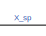
[diagram: root canvas - part 1/3, top center region]
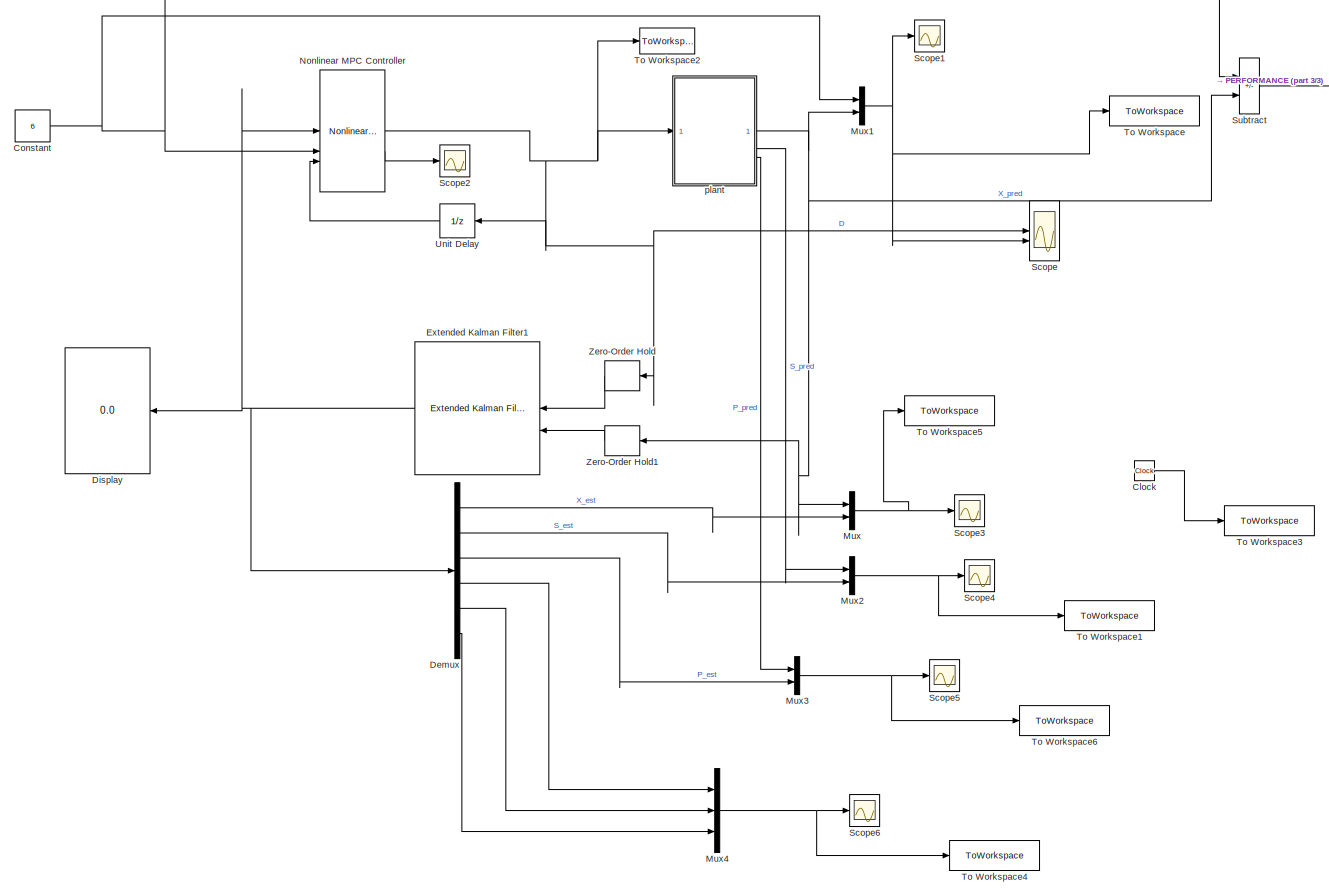
[diagram: root canvas - part 2/3, most of the canvas]
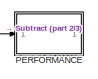
[diagram: root canvas - part 3/3, top right region]
MODEL slx_8ede43a0a8e1
KIND model
CONFIG AbsTol = auto
CONFIG EnableMultiTasking = off
CONFIG FixedStep = auto
CONFIG MaxStep = auto
CONFIG MinStep = auto
CONFIG RelTol = 1e-3
CONFIG SampleTimeConstraint = Unconstrained
CONFIG SolverName = VariableStepAuto
CONFIG StartTime = 0.0
CONFIG StopTime = 500
BLOCK [Clock] Clock
BLOCK [Constant] Constant
  Value = 6
BLOCK [Demux] Demux
  Outputs = 6
BLOCK [Display] Display
  Decimation = 1
BLOCK [Reference] Extended Kalman Filter1  REF=sharedTrackingLibrary/Extended Kalman Filter
  LibrarySourceBlock = cstblocks/State Estimation/Extended Kalman Filter
  SourceBlock = sharedTrackingLibrary/Extended Kalman Filter
  SourceType = Extended Kalman Filter
BLOCK [Mux] Mux
  DisplayOption = bar
  Inputs = 2
BLOCK [Mux] Mux1
  DisplayOption = bar
  Inputs = 2
BLOCK [Mux] Mux2
  DisplayOption = bar
  Inputs = 2
BLOCK [Mux] Mux3
  DisplayOption = bar
  Inputs = 2
BLOCK [Mux] Mux4
  DisplayOption = bar
  Inputs = 3
BLOCK [Reference] Nonlinear MPC Controller  REF=mpclib/Nonlinear MPC Controller  (lib defined in mdl_ae329e0e0455)
  SourceBlock = mpclib/Nonlinear MPC Controller
  SourceType = NonlinearMPC
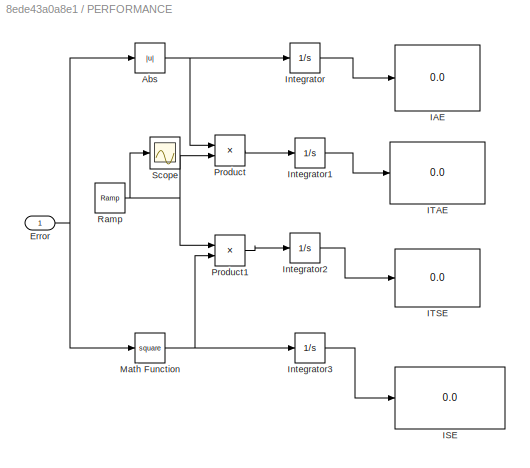
BLOCK [SubSystem] PERFORMANCE
BLOCK [Abs] PERFORMANCE/Abs
  SaturateOnIntegerOverflow = off
BLOCK [Inport] PERFORMANCE/Error
BLOCK [Display] PERFORMANCE/IAE
  Decimation = 1
BLOCK [Display] PERFORMANCE/ISE
  Decimation = 1
BLOCK [Display] PERFORMANCE/ITAE
  Decimation = 1
BLOCK [Display] PERFORMANCE/ITSE
  Decimation = 1
BLOCK [Integrator] PERFORMANCE/Integrator
BLOCK [Integrator] PERFORMANCE/Integrator1
BLOCK [Integrator] PERFORMANCE/Integrator2
BLOCK [Integrator] PERFORMANCE/Integrator3
BLOCK [Math] PERFORMANCE/Math Function
  Operator = square
  SignedPower = on
BLOCK [Product] PERFORMANCE/Product
  RndMeth = Zero
BLOCK [Product] PERFORMANCE/Product1
  RndMeth = Zero
BLOCK [Reference] PERFORMANCE/Ramp  REF=simulink/Sources/Ramp
  SourceBlock = simulink/Sources/Ramp
  SourceType = Ramp
BLOCK [Scope] PERFORMANCE/Scope
  Floating = off
  NumInputPorts = 1
  ScopeSpecificationString = Simulink.scopes.TimeScopeBlockCfg('CurrentConfiguration', extmgr.ConfigurationSet(extmgr.Configuration('Core','General UI',true),extmgr.Configuration('Core','Source UI',true),extmgr.Configuration('Sources','WiredSimulink',true,'DataLoggingLimitDataPoints',true,'DataLoggingSaveFormat','Array','DataLoggingDecimation','1','DataLoggingDecimateData',true),extmgr.Configuration('Visuals','Time Domain',tr...<+878ch>
BLOCK [Scope] Scope
  Floating = off
  NumInputPorts = 2
  ScopeSpecificationString = Simulink.scopes.TimeScopeBlockCfg('CurrentConfiguration', extmgr.ConfigurationSet(extmgr.Configuration('Core','General UI',true),extmgr.Configuration('Core','Source UI',true),extmgr.Configuration('Sources','WiredSimulink',true),extmgr.Configuration('Visuals','Time Domain',true,'SerializedDisplays',{struct('MinYLimReal','-0.02524','MaxYLimReal','0.22712','YLabelReal','','MinYLimMag','0.00000','MaxY...<+2261ch>
BLOCK [Scope] Scope1
  Floating = off
  NumInputPorts = 1
  ScopeSpecificationString = Simulink.scopes.TimeScopeBlockCfg('CurrentConfiguration', extmgr.ConfigurationSet(extmgr.Configuration('Core','General UI',true),extmgr.Configuration('Core','Source UI',true),extmgr.Configuration('Sources','WiredSimulink',true,'DataLoggingVariableName','ScopeData1'),extmgr.Configuration('Visuals','Time Domain',true,'SerializedDisplays',{struct('MinYLimReal','-0.88895','MaxYLimReal','8.00056','YLab...<+1359ch>
BLOCK [Scope] Scope2
  Floating = off
  NumInputPorts = 1
  ScopeSpecificationString = Simulink.scopes.TimeScopeBlockCfg('CurrentConfiguration', extmgr.ConfigurationSet(extmgr.Configuration('Core','General UI',true),extmgr.Configuration('Core','Source UI',true),extmgr.Configuration('Sources','WiredSimulink',true,'DataLoggingVariableName','ScopeData2'),extmgr.Configuration('Visuals','Time Domain',true,'SerializedDisplays',{struct('MinYLimReal','0.875','MaxYLimReal','2.125','YLabelRea...<+1341ch>
BLOCK [Scope] Scope3
  Floating = off
  NumInputPorts = 1
  ScopeSpecificationString = Simulink.scopes.TimeScopeBlockCfg('CurrentConfiguration', extmgr.ConfigurationSet(extmgr.Configuration('Core','General UI',true),extmgr.Configuration('Core','Source UI',true),extmgr.Configuration('Sources','WiredSimulink',true,'DataLoggingVariableName','ScopeData3'),extmgr.Configuration('Visuals','Time Domain',true,'SerializedDisplays',{struct('MinYLimReal','4.86848','MaxYLimReal','6.18369','YLabe...<+1369ch>
BLOCK [Scope] Scope4
  Floating = off
  NumInputPorts = 1
  ScopeSpecificationString = Simulink.scopes.TimeScopeBlockCfg('CurrentConfiguration', extmgr.ConfigurationSet(extmgr.Configuration('Core','General UI',true),extmgr.Configuration('Core','Source UI',true),extmgr.Configuration('Sources','WiredSimulink',true,'DataLoggingVariableName','ScopeData4'),extmgr.Configuration('Visuals','Time Domain',true,'SerializedDisplays',{struct('MinYLimReal','0.28879','MaxYLimReal','5.84231','YLabe...<+1371ch>
BLOCK [Scope] Scope5
  Floating = off
  NumInputPorts = 1
  ScopeSpecificationString = Simulink.scopes.TimeScopeBlockCfg('CurrentConfiguration', extmgr.ConfigurationSet(extmgr.Configuration('Core','General UI',true),extmgr.Configuration('Core','Source UI',true),extmgr.Configuration('Sources','WiredSimulink',true,'DataLoggingVariableName','ScopeData5'),extmgr.Configuration('Visuals','Time Domain',true,'SerializedDisplays',{struct('MinYLimReal','-13.53277','MaxYLimReal','121.79489','Y...<+1396ch>
BLOCK [Scope] Scope6
  Floating = off
  NumInputPorts = 1
  ScopeSpecificationString = Simulink.scopes.TimeScopeBlockCfg('CurrentConfiguration', extmgr.ConfigurationSet(extmgr.Configuration('Core','General UI',true),extmgr.Configuration('Core','Source UI',true),extmgr.Configuration('Sources','WiredSimulink',true,'DataLoggingVariableName','ScopeData1'),extmgr.Configuration('Visuals','Time Domain',true),extmgr.Configuration('Tools','Plot Navigation',true),extmgr.Configuration('Tools',...<+40ch>
BLOCK [Sum] Subtract
  IconShape = rectangular
  Inputs = +-
BLOCK [ToWorkspace] To Workspace
  FixptAsFi = on
  MaxDataPoints = inf
  SampleTime = Ts
  SaveFormat = Timeseries
  VariableName = X
BLOCK [ToWorkspace] To Workspace1
  FixptAsFi = on
  MaxDataPoints = inf
  SampleTime = Ts
  SaveFormat = Timeseries
  VariableName = S
BLOCK [ToWorkspace] To Workspace2
  FixptAsFi = on
  MaxDataPoints = inf
  SampleTime = Ts
  SaveFormat = Timeseries
  VariableName = D
BLOCK [ToWorkspace] To Workspace3
  FixptAsFi = on
  MaxDataPoints = inf
  SampleTime = Ts
  SaveFormat = Timeseries
  VariableName = t_save
BLOCK [ToWorkspace] To Workspace4
  FixptAsFi = on
  MaxDataPoints = inf
  SampleTime = Ts
  SaveFormat = Timeseries
  VariableName = state
BLOCK [ToWorkspace] To Workspace5
  FixptAsFi = on
  MaxDataPoints = inf
  SampleTime = Ts
  SaveFormat = Timeseries
  VariableName = x
BLOCK [ToWorkspace] To Workspace6
  FixptAsFi = on
  MaxDataPoints = inf
  SampleTime = Ts
  SaveFormat = Timeseries
  VariableName = P
BLOCK [UnitDelay] Unit Delay
  HasFrameUpgradeWarning = on
  InitialCondition = 0.202
  SampleTime = Ts
BLOCK [ZeroOrderHold] Zero-Order Hold
  SampleTime = Ts
BLOCK [ZeroOrderHold] Zero-Order Hold1
  SampleTime = Ts
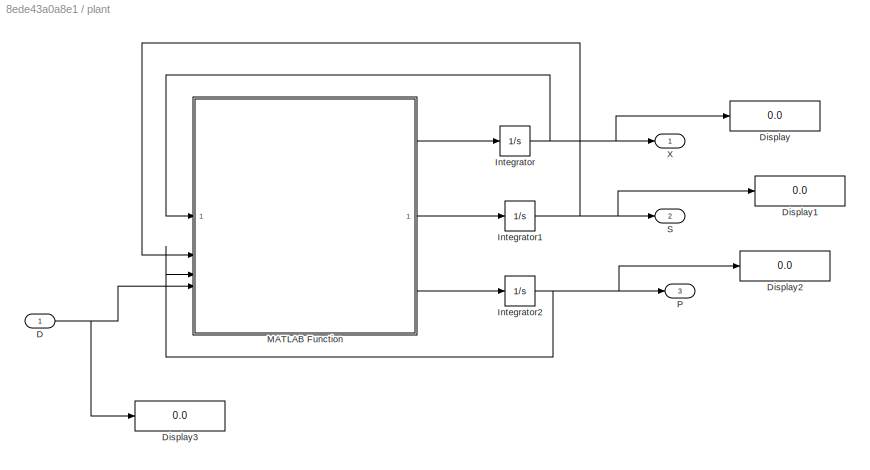
BLOCK [SubSystem] plant
BLOCK [Inport] plant/D
BLOCK [Display] plant/Display
  Decimation = 1
BLOCK [Display] plant/Display1
  Decimation = 1
BLOCK [Display] plant/Display2
  Decimation = 1
BLOCK [Display] plant/Display3
  Decimation = 1
BLOCK [Integrator] plant/Integrator
  InitialCondition = 5
BLOCK [Integrator] plant/Integrator1
  InitialCondition = 5
BLOCK [Integrator] plant/Integrator2
  InitialCondition = 19.14
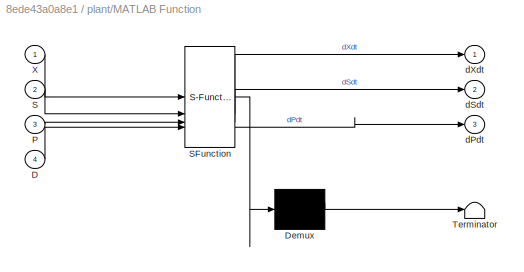
BLOCK [SubSystem] plant/MATLAB Function
  ErrorFcn = Stateflow.Translate.translate
  PermitHierarchicalResolution = ExplicitOnly
  SFBlockType = MATLAB Function
  TreatAsAtomicUnit = on
BLOCK [Demux] plant/MATLAB Function/ Demux 
  Outputs = 1
BLOCK [S-Function] plant/MATLAB Function/ SFunction 
  EnableBusSupport = on
  FunctionName = sf_sfun
  PortCounts = [4 4]
  SFcnIsStateOwnerBlock = off
  SFunctionDeploymentMode = off
  Tag = Stateflow S-Function 2
BLOCK [Terminator] plant/MATLAB Function/ Terminator 
BLOCK [Inport] plant/MATLAB Function/D
  Port = 4
BLOCK [Inport] plant/MATLAB Function/P
  Port = 3
BLOCK [Inport] plant/MATLAB Function/S
  Port = 2
BLOCK [Inport] plant/MATLAB Function/X
BLOCK [Outport] plant/MATLAB Function/dPdt
  Port = 3
BLOCK [Outport] plant/MATLAB Function/dSdt
  Port = 2
BLOCK [Outport] plant/MATLAB Function/dXdt
BLOCK [Outport] plant/P
  Port = 3
BLOCK [Outport] plant/S
  Port = 2
BLOCK [Outport] plant/X
LINE Clock:1 -> To Workspace3:1
NET Constant:1 -> Mux1:1, Nonlinear MPC Controller:2, Subtract:1
LINE Demux:1 -> Mux:2
LINE Demux:2 -> Mux2:2
LINE Demux:3 -> Mux3:2
LINE Demux:4 -> Mux4:1
LINE Demux:5 -> Mux4:2
LINE Demux:6 -> Mux4:3
NET Extended Kalman Filter1:1 -> Demux:1, Display:1, Nonlinear MPC Controller:1
NET Mux1:1 -> Scope1:1, Scope:2, To Workspace:1
NET Mux2:1 -> Scope4:1, To Workspace1:1
NET Mux3:1 -> Scope5:1, To Workspace6:1
NET Mux4:1 -> Scope6:1, To Workspace4:1
NET Mux:1 -> Scope3:1, To Workspace5:1
NET Nonlinear MPC Controller:1 -> Scope:1, To Workspace2:1, Unit Delay:1, Zero-Order Hold:1, plant:1
LINE Nonlinear MPC Controller:2 -> Scope2:1
NET PERFORMANCE/Abs:1 -> PERFORMANCE/Integrator:1, PERFORMANCE/Product:1
NET PERFORMANCE/Error:1 -> PERFORMANCE/Abs:1, PERFORMANCE/Math Function:1
LINE PERFORMANCE/Integrator1:1 -> PERFORMANCE/ITAE:1
LINE PERFORMANCE/Integrator2:1 -> PERFORMANCE/ITSE:1
LINE PERFORMANCE/Integrator3:1 -> PERFORMANCE/ISE:1
LINE PERFORMANCE/Integrator:1 -> PERFORMANCE/IAE:1
NET PERFORMANCE/Math Function:1 -> PERFORMANCE/Integrator3:1, PERFORMANCE/Product1:2
LINE PERFORMANCE/Product1:1 -> PERFORMANCE/Integrator2:1
LINE PERFORMANCE/Product:1 -> PERFORMANCE/Integrator1:1
NET PERFORMANCE/Ramp:1 -> PERFORMANCE/Product1:1, PERFORMANCE/Product:2, PERFORMANCE/Scope:1
LINE Subtract:1 -> PERFORMANCE:1
LINE Unit Delay:1 -> Nonlinear MPC Controller:3
LINE Zero-Order Hold1:1 -> Extended Kalman Filter1:2
LINE Zero-Order Hold:1 -> Extended Kalman Filter1:1
NET plant/D:1 -> plant/Display3:1, plant/MATLAB Function:4
NET plant/Integrator1:1 -> plant/Display1:1, plant/MATLAB Function:2, plant/S:1
NET plant/Integrator2:1 -> plant/Display2:1, plant/MATLAB Function:3, plant/P:1
NET plant/Integrator:1 -> plant/Display:1, plant/MATLAB Function:1, plant/X:1
LINE plant/MATLAB Function:1 -> plant/Integrator:1
LINE plant/MATLAB Function:2 -> plant/Integrator1:1
LINE plant/MATLAB Function:3 -> plant/Integrator2:1
NET plant:1 -> Mux1:2, Mux:1, Subtract:2, Zero-Order Hold1:1
LINE plant:2 -> Mux2:1
LINE plant:3 -> Mux3:1
note: NET lines group one-source signal fan-out (src -> all destinations, sorted); 1:1 wires keep LINE
CHART plant/MATLAB Function states=1 transitions=1
  STATE_LABEL 'eML_blk_kernel()'
  STATE_LABEL 'SCRIPT:\nfunction [dXdt,dSdt,dPdt] = continuous_fermenter(X,S,P,D)\n\nvalues = {22,1.2,50,20,0.4,2.2,0.2,0.48};\n\n[Ki,Km,Pm,Sf,Yxs,alpha,beta,miu_m] = values{:};\n\n\nmiu = (miu_m * (1 - (P/Pm))) * S / (Km + S + (S^2 / Ki))  ;\n\ndXdt = -D * X + miu * X     ;\n\ndSdt = D * (Sf - S) - (1/Yxs) * miu * X   ;\n\ndPdt = -D * P + (alpha * miu + beta) * X   ;\n\nend\n'
CHART  states=0 transitions=0
